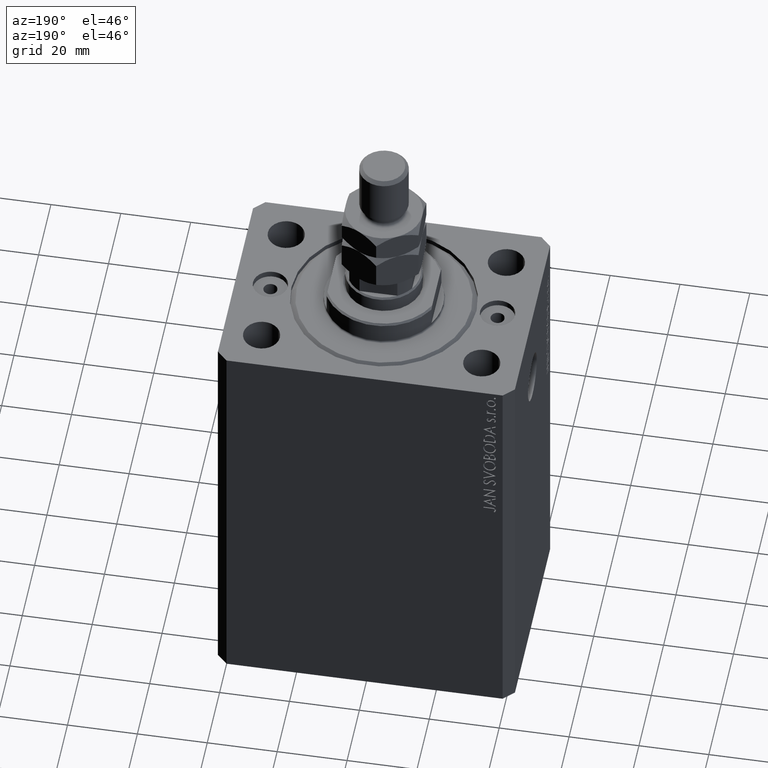
[diagram: clean part render]
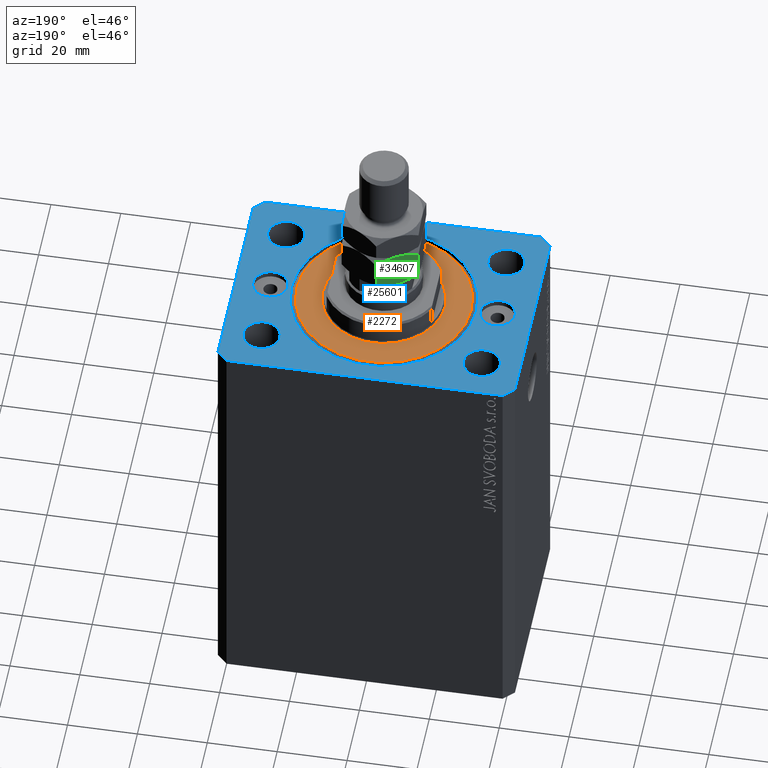
[diagram: same view with three faces highlighted in distinct colors, each labeled with its STEP entity id]
A machine part, auxiliary view with three faces highlighted in distinct colors.
Their STEP definitions:

[orange] entity #2272 — the highlighted planar face has unit normal (0, 0, -1).
#2207 = CIRCLE ( 'NONE', #11841, 24.99999999999995026 ) ;
#2272 = ADVANCED_FACE ( 'NONE', ( #6439, #12950 ), #5746, .F. ) ;
#3354 = DIRECTION ( 'NONE',  ( -0.000000000000000000, -0.000000000000000000, -1.000000000000000000 ) ) ;
#5145 = CARTESIAN_POINT ( 'NONE',  ( 24.99999999999995026, 0.000000000000000000, 0.000000000000000000 ) ) ;
#5746 = PLANE ( 'NONE',  #30170 ) ;
#6439 = FACE_BOUND ( 'NONE', #27355, .T. ) ;
#6469 = EDGE_LOOP ( 'NONE', ( #28249, #42488 ) ) ;
#7049 = CARTESIAN_POINT ( 'NONE',  ( 17.50000000000000000, 0.000000000000000000, 2.168404344971008868E-16 ) ) ;
#7295 = AXIS2_PLACEMENT_3D ( 'NONE', #28181, #3354, #31673 ) ;
#8330 = DIRECTION ( 'NONE',  ( 1.000000000000000000, 0.000000000000000000, 0.000000000000000000 ) ) ;
#11210 = EDGE_CURVE ( 'NONE', #30948, #34683, #15439, .T. ) ;
#11841 = AXIS2_PLACEMENT_3D ( 'NONE', #20949, #28133, #8330 ) ;
#12714 = CARTESIAN_POINT ( 'NONE',  ( 0.000000000000000000, 0.000000000000000000, 0.000000000000000000 ) ) ;
#12950 = FACE_OUTER_BOUND ( 'NONE', #6469, .T. ) ;
#15439 = CIRCLE ( 'NONE', #7295, 24.99999999999995026 ) ;
#16105 = ORIENTED_EDGE ( 'NONE', *, *, #31503, .T. ) ;
#17419 = AXIS2_PLACEMENT_3D ( 'NONE', #36773, #33068, #26086 ) ;
#20044 = AXIS2_PLACEMENT_3D ( 'NONE', #30682, #37418, #41367 ) ;
#20949 = CARTESIAN_POINT ( 'NONE',  ( 0.000000000000000000, 0.000000000000000000, 0.000000000000000000 ) ) ;
#21414 = ORIENTED_EDGE ( 'NONE', *, *, #24148, .T. ) ;
#23817 = CARTESIAN_POINT ( 'NONE',  ( -24.99999999999995026, 3.153465507804431248E-15, 0.000000000000000000 ) ) ;
#24148 = EDGE_CURVE ( 'NONE', #40294, #40551, #38153, .T. ) ;
#25235 = CIRCLE ( 'NONE', #20044, 17.50000000000000000 ) ;
#26086 = DIRECTION ( 'NONE',  ( 1.000000000000000000, 0.000000000000000000, 0.000000000000000000 ) ) ;
#26643 = DIRECTION ( 'NONE',  ( 1.000000000000000000, 0.000000000000000000, -0.000000000000000000 ) ) ;
#27355 = EDGE_LOOP ( 'NONE', ( #21414, #16105 ) ) ;
#28133 = DIRECTION ( 'NONE',  ( -0.000000000000000000, -0.000000000000000000, -1.000000000000000000 ) ) ;
#28181 = CARTESIAN_POINT ( 'NONE',  ( 0.000000000000000000, 0.000000000000000000, 0.000000000000000000 ) ) ;
#28249 = ORIENTED_EDGE ( 'NONE', *, *, #29815, .T. ) ;
#29815 = EDGE_CURVE ( 'NONE', #34683, #30948, #2207, .T. ) ;
#30170 = AXIS2_PLACEMENT_3D ( 'NONE', #12714, #34769, #26643 ) ;
#30682 = CARTESIAN_POINT ( 'NONE',  ( 0.000000000000000000, 0.000000000000000000, 0.000000000000000000 ) ) ;
#30948 = VERTEX_POINT ( 'NONE', #23817 ) ;
#31503 = EDGE_CURVE ( 'NONE', #40551, #40294, #25235, .T. ) ;
#31673 = DIRECTION ( 'NONE',  ( 1.000000000000000000, 0.000000000000000000, 0.000000000000000000 ) ) ;
#32864 = CARTESIAN_POINT ( 'NONE',  ( -17.50000000000000000, 2.143131898507868643E-15, 2.168404344971008868E-16 ) ) ;
#33068 = DIRECTION ( 'NONE',  ( 0.000000000000000000, 0.000000000000000000, 1.000000000000000000 ) ) ;
#34683 = VERTEX_POINT ( 'NONE', #5145 ) ;
#34769 = DIRECTION ( 'NONE',  ( 0.000000000000000000, 0.000000000000000000, 1.000000000000000000 ) ) ;
#36773 = CARTESIAN_POINT ( 'NONE',  ( 0.000000000000000000, 0.000000000000000000, 0.000000000000000000 ) ) ;
#37418 = DIRECTION ( 'NONE',  ( 0.000000000000000000, 0.000000000000000000, 1.000000000000000000 ) ) ;
#38153 = CIRCLE ( 'NONE', #17419, 17.50000000000000000 ) ;
#40294 = VERTEX_POINT ( 'NONE', #7049 ) ;
#40551 = VERTEX_POINT ( 'NONE', #32864 ) ;
#41367 = DIRECTION ( 'NONE',  ( 1.000000000000000000, 0.000000000000000000, 0.000000000000000000 ) ) ;
#42488 = ORIENTED_EDGE ( 'NONE', *, *, #11210, .T. ) ;

[blue] entity #25601 — the highlighted planar face has unit normal (0, 0, 1).
#138 = ORIENTED_EDGE ( 'NONE', *, *, #19300, .T. ) ;
#159 = AXIS2_PLACEMENT_3D ( 'NONE', #33992, #44906, #15659 ) ;
#228 = VERTEX_POINT ( 'NONE', #18578 ) ;
#590 = FACE_OUTER_BOUND ( 'NONE', #12809, .T. ) ;
#882 = DIRECTION ( 'NONE',  ( 0.000000000000000000, 0.000000000000000000, 1.000000000000000000 ) ) ;
#1337 = CARTESIAN_POINT ( 'NONE',  ( -31.49999999999999289, -20.00000000000000355, 0.000000000000000000 ) ) ;
#1448 = ORIENTED_EDGE ( 'NONE', *, *, #31786, .F. ) ;
#1647 = CARTESIAN_POINT ( 'NONE',  ( -31.50000000000000000, 19.99999999999999645, 0.000000000000000000 ) ) ;
#1738 = EDGE_CURVE ( 'NONE', #15486, #44136, #33089, .T. ) ;
#2222 = EDGE_CURVE ( 'NONE', #28083, #29719, #4184, .T. ) ;
#2321 = DIRECTION ( 'NONE',  ( 0.000000000000000000, 0.000000000000000000, 1.000000000000000000 ) ) ;
#2837 = DIRECTION ( 'NONE',  ( -0.7071067811865471286, -0.7071067811865479058, 0.000000000000000000 ) ) ;
#2993 = EDGE_CURVE ( 'NONE', #27111, #28062, #36097, .T. ) ;
#3096 = VECTOR ( 'NONE', #26003, 1000.000000000000000 ) ;
#3204 = VECTOR ( 'NONE', #40317, 1000.000000000000000 ) ;
#3394 = DIRECTION ( 'NONE',  ( 1.000000000000000000, 0.000000000000000000, 0.000000000000000000 ) ) ;
#3396 = FACE_BOUND ( 'NONE', #4279, .T. ) ;
#3686 = CARTESIAN_POINT ( 'NONE',  ( -36.75000000000000000, 19.99999999999999645, 0.000000000000000000 ) ) ;
#3854 = FACE_BOUND ( 'NONE', #45697, .T. ) ;
#4184 = CIRCLE ( 'NONE', #30132, 5.250000000000000888 ) ;
#4279 = EDGE_LOOP ( 'NONE', ( #6096, #12100 ) ) ;
#4301 = CARTESIAN_POINT ( 'NONE',  ( 31.49999999999999289, -20.00000000000000355, 0.000000000000000000 ) ) ;
#4992 = EDGE_CURVE ( 'NONE', #44136, #15486, #27243, .T. ) ;
#5160 = CARTESIAN_POINT ( 'NONE',  ( 27.50000000000000355, 6.123233995736762338E-16, 0.000000000000000000 ) ) ;
#6096 = ORIENTED_EDGE ( 'NONE', *, *, #4992, .F. ) ;
#6169 = DIRECTION ( 'NONE',  ( 1.000000000000000000, 0.000000000000000000, 0.000000000000000000 ) ) ;
#6219 = CIRCLE ( 'NONE', #18087, 5.249999999999997335 ) ;
#6264 = DIRECTION ( 'NONE',  ( 1.000000000000000000, 0.000000000000000000, 0.000000000000000000 ) ) ;
#6526 = ORIENTED_EDGE ( 'NONE', *, *, #27889, .T. ) ;
#6837 = CARTESIAN_POINT ( 'NONE',  ( 37.50000000000000000, 0.000000000000000000, 0.000000000000000000 ) ) ;
#7117 = VERTEX_POINT ( 'NONE', #30669 ) ;
#7177 = CARTESIAN_POINT ( 'NONE',  ( -36.74999999999999289, -20.00000000000000355, 0.000000000000000000 ) ) ;
#7834 = CARTESIAN_POINT ( 'NONE',  ( 42.50000000000051870, 28.49999999999995381, 0.000000000000000000 ) ) ;
#8231 = ORIENTED_EDGE ( 'NONE', *, *, #2993, .F. ) ;
#8358 = CARTESIAN_POINT ( 'NONE',  ( 31.50000000000000000, 19.99999999999999289, 0.000000000000000000 ) ) ;
#8840 = CARTESIAN_POINT ( 'NONE',  ( 39.50000000000056843, 31.49999999999999289, 0.000000000000000000 ) ) ;
#8994 = CIRCLE ( 'NONE', #32691, 4.999999999999997335 ) ;
#9285 = CARTESIAN_POINT ( 'NONE',  ( 31.50000000000000000, 19.99999999999999289, 0.000000000000000000 ) ) ;
#9419 = VERTEX_POINT ( 'NONE', #14199 ) ;
#9534 = EDGE_LOOP ( 'NONE', ( #44475, #35244 ) ) ;
#9644 = CARTESIAN_POINT ( 'NONE',  ( 31.49999999999999289, -20.00000000000000355, 0.000000000000000000 ) ) ;
#9783 = CIRCLE ( 'NONE', #14938, 5.000000000000000888 ) ;
#9819 = VECTOR ( 'NONE', #15542, 1000.000000000000000 ) ;
#10407 = VERTEX_POINT ( 'NONE', #8840 ) ;
#10736 = CARTESIAN_POINT ( 'NONE',  ( 32.50000000000000000, 0.000000000000000000, 0.000000000000000000 ) ) ;
#10880 = AXIS2_PLACEMENT_3D ( 'NONE', #9285, #2321, #16488 ) ;
#10955 = EDGE_CURVE ( 'NONE', #24323, #31981, #40062, .T. ) ;
#11032 = CIRCLE ( 'NONE', #36982, 5.250000000000000888 ) ;
#11163 = VERTEX_POINT ( 'NONE', #6837 ) ;
#11247 = CIRCLE ( 'NONE', #26796, 5.250000000000000888 ) ;
#11330 = CARTESIAN_POINT ( 'NONE',  ( 36.75000000000000000, 19.99999999999999289, 0.000000000000000000 ) ) ;
#11387 = LINE ( 'NONE', #15560, #3096 ) ;
#11754 = LINE ( 'NONE', #33354, #3204 ) ;
#12100 = ORIENTED_EDGE ( 'NONE', *, *, #1738, .F. ) ;
#12380 = VERTEX_POINT ( 'NONE', #15122 ) ;
#12431 = AXIS2_PLACEMENT_3D ( 'NONE', #21071, #43103, #14335 ) ;
#12581 = CIRCLE ( 'NONE', #21492, 4.999999999999997335 ) ;
#12809 = EDGE_LOOP ( 'NONE', ( #34073, #23861, #41742, #13486, #24296, #138, #6526, #31009 ) ) ;
#12987 = LINE ( 'NONE', #33659, #9819 ) ;
#13059 = LINE ( 'NONE', #31394, #20212 ) ;
#13079 = CARTESIAN_POINT ( 'NONE',  ( -39.50000000000000711, -31.50000000000000000, 0.000000000000000000 ) ) ;
#13480 = EDGE_CURVE ( 'NONE', #7117, #17070, #11032, .T. ) ;
#13486 = ORIENTED_EDGE ( 'NONE', *, *, #44618, .T. ) ;
#14137 = CARTESIAN_POINT ( 'NONE',  ( 42.50000000000000711, -28.50000000000000355, 0.000000000000000000 ) ) ;
#14199 = CARTESIAN_POINT ( 'NONE',  ( -27.50000000000000000, 0.000000000000000000, 0.000000000000000000 ) ) ;
#14335 = DIRECTION ( 'NONE',  ( 1.000000000000000000, 0.000000000000000000, 0.000000000000000000 ) ) ;
#14372 = LINE ( 'NONE', #14137, #36239 ) ;
#14451 = DIRECTION ( 'NONE',  ( 0.000000000000000000, -0.000000000000000000, -1.000000000000000000 ) ) ;
#14528 = FACE_BOUND ( 'NONE', #29120, .T. ) ;
#14919 = CARTESIAN_POINT ( 'NONE',  ( 0.000000000000000000, 0.000000000000000000, 0.000000000000000000 ) ) ;
#14938 = AXIS2_PLACEMENT_3D ( 'NONE', #17628, #882, #21556 ) ;
#15014 = DIRECTION ( 'NONE',  ( -0.7071067811865364705, 0.7071067811865584529, 0.000000000000000000 ) ) ;
#15017 = DIRECTION ( 'NONE',  ( 1.000000000000000000, 0.000000000000000000, 0.000000000000000000 ) ) ;
#15122 = CARTESIAN_POINT ( 'NONE',  ( -39.50000000000000711, 31.50000000000000000, 0.000000000000000000 ) ) ;
#15486 = VERTEX_POINT ( 'NONE', #19520 ) ;
#15542 = DIRECTION ( 'NONE',  ( 0.7071067811865483499, 0.7071067811865466846, 0.000000000000000000 ) ) ;
#15560 = CARTESIAN_POINT ( 'NONE',  ( 39.50000000000056843, 31.49999999999999289, 0.000000000000000000 ) ) ;
#15659 = DIRECTION ( 'NONE',  ( 1.000000000000000000, 0.000000000000000000, 0.000000000000000000 ) ) ;
#15814 = DIRECTION ( 'NONE',  ( 0.000000000000000000, 0.000000000000000000, 1.000000000000000000 ) ) ;
#16279 = DIRECTION ( 'NONE',  ( 1.000000000000000000, 0.000000000000000000, 0.000000000000000000 ) ) ;
#16488 = DIRECTION ( 'NONE',  ( 1.000000000000000000, 0.000000000000000000, 0.000000000000000000 ) ) ;
#16524 = EDGE_LOOP ( 'NONE', ( #1448, #39591 ) ) ;
#16744 = CARTESIAN_POINT ( 'NONE',  ( 26.50000000000000355, 0.000000000000000000, 0.000000000000000000 ) ) ;
#17070 = VERTEX_POINT ( 'NONE', #3686 ) ;
#17115 = VERTEX_POINT ( 'NONE', #19386 ) ;
#17169 = CARTESIAN_POINT ( 'NONE',  ( 42.50000000000000711, -28.50000000000000355, 0.000000000000000000 ) ) ;
#17562 = FACE_BOUND ( 'NONE', #9534, .T. ) ;
#17628 = CARTESIAN_POINT ( 'NONE',  ( -32.50000000000000000, 0.000000000000000000, 0.000000000000000000 ) ) ;
#17894 = EDGE_CURVE ( 'NONE', #17070, #7117, #29024, .T. ) ;
#17916 = EDGE_CURVE ( 'NONE', #44294, #9419, #9783, .T. ) ;
#17975 = VERTEX_POINT ( 'NONE', #26405 ) ;
#18019 = FACE_BOUND ( 'NONE', #16524, .T. ) ;
#18087 = AXIS2_PLACEMENT_3D ( 'NONE', #8358, #36677, #29697 ) ;
#18446 = ORIENTED_EDGE ( 'NONE', *, *, #36742, .F. ) ;
#18532 = DIRECTION ( 'NONE',  ( 8.886653596232072440E-15, 1.000000000000000000, 0.000000000000000000 ) ) ;
#18578 = CARTESIAN_POINT ( 'NONE',  ( 26.24999999999999645, -20.00000000000000355, 0.000000000000000000 ) ) ;
#19007 = ORIENTED_EDGE ( 'NONE', *, *, #13480, .F. ) ;
#19128 = VECTOR ( 'NONE', #28473, 1000.000000000000000 ) ;
#19300 = EDGE_CURVE ( 'NONE', #31981, #37477, #12987, .T. ) ;
#19386 = CARTESIAN_POINT ( 'NONE',  ( -42.50000000000000000, -28.50000000000000000, 0.000000000000000000 ) ) ;
#19520 = CARTESIAN_POINT ( 'NONE',  ( -26.50000000000000355, 3.245314017740485765E-15, 0.000000000000000000 ) ) ;
#20212 = VECTOR ( 'NONE', #2837, 1000.000000000000000 ) ;
#21071 = CARTESIAN_POINT ( 'NONE',  ( 0.000000000000000000, 0.000000000000000000, 0.000000000000000000 ) ) ;
#21264 = FACE_BOUND ( 'NONE', #33167, .T. ) ;
#21492 = AXIS2_PLACEMENT_3D ( 'NONE', #25962, #24425, #24658 ) ;
#21556 = DIRECTION ( 'NONE',  ( 1.000000000000000000, 0.000000000000000000, 0.000000000000000000 ) ) ;
#21941 = DIRECTION ( 'NONE',  ( 0.000000000000000000, 0.000000000000000000, 1.000000000000000000 ) ) ;
#22694 = DIRECTION ( 'NONE',  ( 1.000000000000000000, 0.000000000000000000, 0.000000000000000000 ) ) ;
#23139 = CIRCLE ( 'NONE', #159, 5.000000000000000888 ) ;
#23275 = CARTESIAN_POINT ( 'NONE',  ( -26.24999999999999289, -20.00000000000000355, 0.000000000000000000 ) ) ;
#23861 = ORIENTED_EDGE ( 'NONE', *, *, #42101, .T. ) ;
#23892 = CARTESIAN_POINT ( 'NONE',  ( -31.50000000000000000, 19.99999999999999645, 0.000000000000000000 ) ) ;
#24296 = ORIENTED_EDGE ( 'NONE', *, *, #10955, .T. ) ;
#24323 = VERTEX_POINT ( 'NONE', #13079 ) ;
#24425 = DIRECTION ( 'NONE',  ( 0.000000000000000000, -0.000000000000000000, -1.000000000000000000 ) ) ;
#24575 = VECTOR ( 'NONE', #15014, 1000.000000000000114 ) ;
#24658 = DIRECTION ( 'NONE',  ( 1.000000000000000000, 0.000000000000000000, 0.000000000000000000 ) ) ;
#24819 = VERTEX_POINT ( 'NONE', #43517 ) ;
#25193 = PLANE ( 'NONE',  #28800 ) ;
#25298 = LINE ( 'NONE', #39470, #40149 ) ;
#25601 = ADVANCED_FACE ( 'NONE', ( #590, #14528, #3854, #18019, #39603, #3396, #21264, #17562 ), #25193, .T. ) ;
#25850 = VERTEX_POINT ( 'NONE', #5160 ) ;
#25962 = CARTESIAN_POINT ( 'NONE',  ( 32.50000000000000000, 0.000000000000000000, 0.000000000000000000 ) ) ;
#26003 = DIRECTION ( 'NONE',  ( -1.000000000000000000, 8.783410004945795812E-17, 0.000000000000000000 ) ) ;
#26405 = CARTESIAN_POINT ( 'NONE',  ( 36.74999999999999289, -20.00000000000000355, 0.000000000000000000 ) ) ;
#26697 = CIRCLE ( 'NONE', #34864, 5.249999999999997335 ) ;
#26796 = AXIS2_PLACEMENT_3D ( 'NONE', #35710, #29404, #15017 ) ;
#27111 = VERTEX_POINT ( 'NONE', #45138 ) ;
#27157 = AXIS2_PLACEMENT_3D ( 'NONE', #14919, #31727, #43472 ) ;
#27243 = CIRCLE ( 'NONE', #12431, 26.50000000000000355 ) ;
#27889 = EDGE_CURVE ( 'NONE', #37477, #24819, #14372, .T. ) ;
#28062 = VERTEX_POINT ( 'NONE', #11330 ) ;
#28083 = VERTEX_POINT ( 'NONE', #7177 ) ;
#28473 = DIRECTION ( 'NONE',  ( 1.000000000000000000, 0.000000000000000000, 0.000000000000000000 ) ) ;
#28599 = DIRECTION ( 'NONE',  ( 1.000000000000000000, 0.000000000000000000, 0.000000000000000000 ) ) ;
#28800 = AXIS2_PLACEMENT_3D ( 'NONE', #31719, #21941, #45884 ) ;
#29024 = CIRCLE ( 'NONE', #34989, 5.250000000000000888 ) ;
#29120 = EDGE_LOOP ( 'NONE', ( #19007, #41929 ) ) ;
#29208 = DIRECTION ( 'NONE',  ( 0.000000000000000000, 0.000000000000000000, 1.000000000000000000 ) ) ;
#29404 = DIRECTION ( 'NONE',  ( 0.000000000000000000, 0.000000000000000000, 1.000000000000000000 ) ) ;
#29625 = ORIENTED_EDGE ( 'NONE', *, *, #17916, .F. ) ;
#29697 = DIRECTION ( 'NONE',  ( 1.000000000000000000, 0.000000000000000000, 0.000000000000000000 ) ) ;
#29719 = VERTEX_POINT ( 'NONE', #23275 ) ;
#29756 = EDGE_CURVE ( 'NONE', #11163, #25850, #12581, .T. ) ;
#30132 = AXIS2_PLACEMENT_3D ( 'NONE', #1337, #29208, #22694 ) ;
#30230 = VERTEX_POINT ( 'NONE', #31018 ) ;
#30445 = ORIENTED_EDGE ( 'NONE', *, *, #35561, .F. ) ;
#30669 = CARTESIAN_POINT ( 'NONE',  ( -26.25000000000000000, 19.99999999999999645, 0.000000000000000000 ) ) ;
#31009 = ORIENTED_EDGE ( 'NONE', *, *, #38850, .T. ) ;
#31018 = CARTESIAN_POINT ( 'NONE',  ( -42.50000000000000000, 28.50000000000000000, 0.000000000000000000 ) ) ;
#31394 = CARTESIAN_POINT ( 'NONE',  ( -39.50000000000000711, 31.50000000000000000, 0.000000000000000000 ) ) ;
#31719 = CARTESIAN_POINT ( 'NONE',  ( 0.000000000000000000, 0.000000000000000000, 0.000000000000000000 ) ) ;
#31727 = DIRECTION ( 'NONE',  ( 0.000000000000000000, 0.000000000000000000, 1.000000000000000000 ) ) ;
#31786 = EDGE_CURVE ( 'NONE', #17975, #228, #26697, .T. ) ;
#31981 = VERTEX_POINT ( 'NONE', #44439 ) ;
#32638 = CARTESIAN_POINT ( 'NONE',  ( -39.50000000000000711, -31.50000000000000000, 0.000000000000000000 ) ) ;
#32671 = LINE ( 'NONE', #7834, #24575 ) ;
#32691 = AXIS2_PLACEMENT_3D ( 'NONE', #10736, #14451, #28599 ) ;
#33089 = CIRCLE ( 'NONE', #27157, 26.50000000000000355 ) ;
#33167 = EDGE_LOOP ( 'NONE', ( #18446, #29625 ) ) ;
#33354 = CARTESIAN_POINT ( 'NONE',  ( -42.50000000000000000, -28.50000000000000000, 0.000000000000000000 ) ) ;
#33559 = EDGE_CURVE ( 'NONE', #228, #17975, #37131, .T. ) ;
#33659 = CARTESIAN_POINT ( 'NONE',  ( 39.50000000000000711, -31.50000000000000000, 0.000000000000000000 ) ) ;
#33816 = EDGE_CURVE ( 'NONE', #25850, #11163, #8994, .T. ) ;
#33992 = CARTESIAN_POINT ( 'NONE',  ( -32.50000000000000000, 0.000000000000000000, 0.000000000000000000 ) ) ;
#34073 = ORIENTED_EDGE ( 'NONE', *, *, #41162, .T. ) ;
#34124 = DIRECTION ( 'NONE',  ( 0.000000000000000000, 0.000000000000000000, 1.000000000000000000 ) ) ;
#34864 = AXIS2_PLACEMENT_3D ( 'NONE', #4301, #39368, #3394 ) ;
#34989 = AXIS2_PLACEMENT_3D ( 'NONE', #23892, #34124, #6264 ) ;
#34990 = EDGE_CURVE ( 'NONE', #30230, #17115, #25298, .T. ) ;
#35244 = ORIENTED_EDGE ( 'NONE', *, *, #33816, .T. ) ;
#35561 = EDGE_CURVE ( 'NONE', #29719, #28083, #11247, .T. ) ;
#35710 = CARTESIAN_POINT ( 'NONE',  ( -31.49999999999999289, -20.00000000000000355, 0.000000000000000000 ) ) ;
#36097 = CIRCLE ( 'NONE', #10880, 5.249999999999997335 ) ;
#36142 = ORIENTED_EDGE ( 'NONE', *, *, #2222, .F. ) ;
#36239 = VECTOR ( 'NONE', #18532, 1000.000000000000000 ) ;
#36677 = DIRECTION ( 'NONE',  ( 0.000000000000000000, 0.000000000000000000, 1.000000000000000000 ) ) ;
#36742 = EDGE_CURVE ( 'NONE', #9419, #44294, #23139, .T. ) ;
#36879 = CARTESIAN_POINT ( 'NONE',  ( -37.50000000000000000, 6.123233995736768255E-16, 0.000000000000000000 ) ) ;
#36982 = AXIS2_PLACEMENT_3D ( 'NONE', #1647, #15814, #16279 ) ;
#37131 = CIRCLE ( 'NONE', #40817, 5.249999999999997335 ) ;
#37477 = VERTEX_POINT ( 'NONE', #17169 ) ;
#37976 = DIRECTION ( 'NONE',  ( 0.000000000000000000, 0.000000000000000000, 1.000000000000000000 ) ) ;
#38850 = EDGE_CURVE ( 'NONE', #24819, #10407, #32671, .T. ) ;
#39368 = DIRECTION ( 'NONE',  ( 0.000000000000000000, 0.000000000000000000, 1.000000000000000000 ) ) ;
#39470 = CARTESIAN_POINT ( 'NONE',  ( -42.50000000000000000, 28.50000000000000000, 0.000000000000000000 ) ) ;
#39591 = ORIENTED_EDGE ( 'NONE', *, *, #33559, .F. ) ;
#39603 = FACE_BOUND ( 'NONE', #40856, .T. ) ;
#40062 = LINE ( 'NONE', #32638, #19128 ) ;
#40149 = VECTOR ( 'NONE', #43398, 1000.000000000000000 ) ;
#40317 = DIRECTION ( 'NONE',  ( 0.7071067811865471286, -0.7071067811865479058, 0.000000000000000000 ) ) ;
#40817 = AXIS2_PLACEMENT_3D ( 'NONE', #9644, #37976, #6169 ) ;
#40856 = EDGE_LOOP ( 'NONE', ( #30445, #36142 ) ) ;
#41162 = EDGE_CURVE ( 'NONE', #10407, #12380, #11387, .T. ) ;
#41742 = ORIENTED_EDGE ( 'NONE', *, *, #34990, .T. ) ;
#41929 = ORIENTED_EDGE ( 'NONE', *, *, #17894, .F. ) ;
#42101 = EDGE_CURVE ( 'NONE', #12380, #30230, #13059, .T. ) ;
#43103 = DIRECTION ( 'NONE',  ( 0.000000000000000000, 0.000000000000000000, 1.000000000000000000 ) ) ;
#43398 = DIRECTION ( 'NONE',  ( 0.000000000000000000, -1.000000000000000000, 0.000000000000000000 ) ) ;
#43472 = DIRECTION ( 'NONE',  ( 1.000000000000000000, 0.000000000000000000, 0.000000000000000000 ) ) ;
#43517 = CARTESIAN_POINT ( 'NONE',  ( 42.50000000000051870, 28.49999999999995381, 0.000000000000000000 ) ) ;
#43676 = ORIENTED_EDGE ( 'NONE', *, *, #45878, .F. ) ;
#44136 = VERTEX_POINT ( 'NONE', #16744 ) ;
#44294 = VERTEX_POINT ( 'NONE', #36879 ) ;
#44439 = CARTESIAN_POINT ( 'NONE',  ( 39.50000000000000711, -31.50000000000000000, 0.000000000000000000 ) ) ;
#44475 = ORIENTED_EDGE ( 'NONE', *, *, #29756, .T. ) ;
#44618 = EDGE_CURVE ( 'NONE', #17115, #24323, #11754, .T. ) ;
#44906 = DIRECTION ( 'NONE',  ( 0.000000000000000000, 0.000000000000000000, 1.000000000000000000 ) ) ;
#45138 = CARTESIAN_POINT ( 'NONE',  ( 26.25000000000000355, 19.99999999999999289, 0.000000000000000000 ) ) ;
#45697 = EDGE_LOOP ( 'NONE', ( #43676, #8231 ) ) ;
#45878 = EDGE_CURVE ( 'NONE', #28062, #27111, #6219, .T. ) ;
#45884 = DIRECTION ( 'NONE',  ( 1.000000000000000000, 0.000000000000000000, -0.000000000000000000 ) ) ;

[green] entity #34607 — the highlighted planar face has unit normal (0.5, -0.866, 0).
#407 = VERTEX_POINT ( 'NONE', #6195 ) ;
#607 = CARTESIAN_POINT ( 'NONE',  ( 0.000000000000000000, 12.70170592217176342, 11.00000000000000000 ) ) ;
#774 = B_SPLINE_CURVE_WITH_KNOTS ( 'NONE', 3,
 ( #44579, #12780, #26941, #41102, #41339, #27621, #20213, #2561 ),
 .UNSPECIFIED., .F., .F.,
 ( 4, 2, 2, 4 ),
 ( 2.544311317609508508E-07, 0.003291871675740026034, 0.004937680298044156910, 0.006583488920348289086 ),
 .UNSPECIFIED. ) ;
#1177 = VERTEX_POINT ( 'NONE', #42737 ) ;
#1249 = LINE ( 'NONE', #21471, #11405 ) ;
#2514 = CARTESIAN_POINT ( 'NONE',  ( -5.499999999999992895, 9.526279441628830114, 0.000000000000000000 ) ) ;
#2561 = CARTESIAN_POINT ( 'NONE',  ( -5.499999999999990230, 9.526279441628824785, 11.00000000000000000 ) ) ;
#2740 = CARTESIAN_POINT ( 'NONE',  ( -3.602926119288147433, 10.62155555733042434, 0.1689086083647601266 ) ) ;
#3358 = CARTESIAN_POINT ( 'NONE',  ( -7.420105971005176215, 8.417705742396382362, 0.2081220748670755127 ) ) ;
#3429 = ORIENTED_EDGE ( 'NONE', *, *, #11285, .F. ) ;
#3814 = CARTESIAN_POINT ( 'NONE',  ( -11.00000000000000000, 6.350852961085892368, 1.701705922171765195 ) ) ;
#3964 = EDGE_CURVE ( 'NONE', #407, #31945, #774, .T. ) ;
#4141 = ORIENTED_EDGE ( 'NONE', *, *, #29547, .F. ) ;
#6195 = CARTESIAN_POINT ( 'NONE',  ( -4.327962126576701651E-16, 12.70170592217176342, 9.298294077828241910 ) ) ;
#7124 = LINE ( 'NONE', #607, #9897 ) ;
#7289 = CARTESIAN_POINT ( 'NONE',  ( -10.13851939750335696, 6.848229018838968507, 9.795670135581390880 ) ) ;
#7943 = CARTESIAN_POINT ( 'NONE',  ( 9.006588997586899406E-16, 12.70170592217176342, 1.701705922171758312 ) ) ;
#9477 = CARTESIAN_POINT ( 'NONE',  ( -4.543329525579419048, 10.07861339756131791, 1.768604793866978714E-15 ) ) ;
#9897 = VECTOR ( 'NONE', #11052, 1000.000000000000000 ) ;
#10282 = FACE_OUTER_BOUND ( 'NONE', #32992, .T. ) ;
#10316 = CARTESIAN_POINT ( 'NONE',  ( -10.13752086928278118, 6.848805519375908979, 1.203753363881748362 ) ) ;
#10772 = CARTESIAN_POINT ( 'NONE',  ( -11.00000000000000000, 6.350852961085890591, 9.298294077828234805 ) ) ;
#10983 = CARTESIAN_POINT ( 'NONE',  ( -11.00000000000000000, 6.350852961085892368, 1.701705922171765195 ) ) ;
#11052 = DIRECTION ( 'NONE',  ( -0.000000000000000000, -0.000000000000000000, -1.000000000000000000 ) ) ;
#11285 = EDGE_CURVE ( 'NONE', #31945, #1177, #42688, .T. ) ;
#11405 = VECTOR ( 'NONE', #39576, 1000.000000000000000 ) ;
#11447 = CARTESIAN_POINT ( 'NONE',  ( -6.456670474420569406, 8.973945485696344093, 11.00000000000000000 ) ) ;
#12780 = CARTESIAN_POINT ( 'NONE',  ( -0.8624791307172121613, 12.20375336388174681, 9.796246636118258522 ) ) ;
#12899 = CARTESIAN_POINT ( 'NONE',  ( -5.499999999999992895, 9.526279441628830114, 0.000000000000000000 ) ) ;
#13980 = VERTEX_POINT ( 'NONE', #10983 ) ;
#14259 = CARTESIAN_POINT ( 'NONE',  ( -7.397073880711845462, 8.431003325927239445, 10.83109139163524404 ) ) ;
#14489 = CARTESIAN_POINT ( 'NONE',  ( -6.470625887979888802, 8.965888323921223702, 0.04365929743512723255 ) ) ;
#15628 = EDGE_CURVE ( 'NONE', #407, #39573, #7124, .T. ) ;
#17263 = PLANE ( 'NONE',  #41621 ) ;
#17524 = CARTESIAN_POINT ( 'NONE',  ( -5.499999999999992895, 9.526279441628830114, 0.000000000000000000 ) ) ;
#17750 = CARTESIAN_POINT ( 'NONE',  ( -9.255521992360788985, 7.358027808391769398, 0.7806233875467772920 ) ) ;
#17977 = CARTESIAN_POINT ( 'NONE',  ( -5.499999999999990230, 9.526279441628824785, 11.00000000000000000 ) ) ;
#20099 = ORIENTED_EDGE ( 'NONE', *, *, #33290, .F. ) ;
#20213 = CARTESIAN_POINT ( 'NONE',  ( -5.018290712253354435, 9.804394428580495813, 11.00000000000000178 ) ) ;
#20732 = CARTESIAN_POINT ( 'NONE',  ( 0.000000000000000000, 12.70170592217176342, 11.00000000000000000 ) ) ;
#21471 = CARTESIAN_POINT ( 'NONE',  ( -11.00000000000000000, 6.350852961085890591, 11.00000000000000000 ) ) ;
#23459 = B_SPLINE_CURVE_WITH_KNOTS ( 'NONE', 3,
 ( #3814, #10316, #17750, #38656, #3358, #14489, #35847, #17524 ),
 .UNSPECIFIED., .F., .F.,
 ( 4, 2, 2, 4 ),
 ( 2.544311317612473652E-07, 0.003291871675740032539, 0.004937680298044168185, 0.006583488920348303831 ),
 .UNSPECIFIED. ) ;
#23632 = CARTESIAN_POINT ( 'NONE',  ( -1.748214531935804672, 11.69237379155741330, 0.7776848045220272621 ) ) ;
#24440 = DIRECTION ( 'NONE',  ( 0.8660254037844389297, 0.4999999999999992784, 0.000000000000000000 ) ) ;
#26283 = ORIENTED_EDGE ( 'NONE', *, *, #15628, .T. ) ;
#26941 = CARTESIAN_POINT ( 'NONE',  ( -1.744478007639206130, 11.69453107486589083, 10.21937661245322637 ) ) ;
#27621 = CARTESIAN_POINT ( 'NONE',  ( -4.529374112020101428, 10.08667055933643830, 10.95634070256487469 ) ) ;
#28317 = ORIENTED_EDGE ( 'NONE', *, *, #3964, .F. ) ;
#28756 = B_SPLINE_CURVE_WITH_KNOTS ( 'NONE', 3,
 ( #2514, #9477, #2740, #23632, #44534, #37800 ),
 .UNSPECIFIED., .F., .F.,
 ( 4, 2, 4 ),
 ( 0.006583488920348303831, 0.009852050593448711396, 0.01312061226654911809 ),
 .UNSPECIFIED. ) ;
#29547 = EDGE_CURVE ( 'NONE', #13980, #42925, #23459, .T. ) ;
#30746 = CARTESIAN_POINT ( 'NONE',  ( -5.499999999999990230, 9.526279441628824785, 11.00000000000000000 ) ) ;
#31415 = DIRECTION ( 'NONE',  ( 0.4999999999999993339, -0.8660254037844390407, 0.000000000000000000 ) ) ;
#31945 = VERTEX_POINT ( 'NONE', #30746 ) ;
#32992 = EDGE_LOOP ( 'NONE', ( #4141, #36424, #3429, #28317, #26283, #20099 ) ) ;
#33290 = EDGE_CURVE ( 'NONE', #42925, #39573, #28756, .T. ) ;
#34607 = ADVANCED_FACE ( 'NONE', ( #10282 ), #17263, .F. ) ;
#35843 = CARTESIAN_POINT ( 'NONE',  ( -9.251785468064188223, 7.360185091700242488, 10.22231519547797340 ) ) ;
#35847 = CARTESIAN_POINT ( 'NONE',  ( -5.981709287746635795, 9.248164454677164414, 1.734723475976807094E-15 ) ) ;
#36424 = ORIENTED_EDGE ( 'NONE', *, *, #44974, .F. ) ;
#37800 = CARTESIAN_POINT ( 'NONE',  ( 9.006588997586899406E-16, 12.70170592217176342, 1.701705922171758312 ) ) ;
#38656 = CARTESIAN_POINT ( 'NONE',  ( -7.884967580346608607, 8.149317767107183030, 0.3282192120904074417 ) ) ;
#39573 = VERTEX_POINT ( 'NONE', #7943 ) ;
#39576 = DIRECTION ( 'NONE',  ( -0.000000000000000000, -0.000000000000000000, -1.000000000000000000 ) ) ;
#41102 = CARTESIAN_POINT ( 'NONE',  ( -3.115032419653383400, 10.90324111615047542, 10.67178078790959539 ) ) ;
#41339 = CARTESIAN_POINT ( 'NONE',  ( -3.579894028994817123, 10.63485314086127786, 10.79187792513292798 ) ) ;
#41621 = AXIS2_PLACEMENT_3D ( 'NONE', #20732, #31415, #24440 ) ;
#42688 = B_SPLINE_CURVE_WITH_KNOTS ( 'NONE', 3,
 ( #17977, #11447, #14259, #35843, #7289, #10772 ),
 .UNSPECIFIED., .F., .F.,
 ( 4, 2, 4 ),
 ( 0.006583488920348289086, 0.009852050593448704457, 0.01312061226654911983 ),
 .UNSPECIFIED. ) ;
#42737 = CARTESIAN_POINT ( 'NONE',  ( -11.00000000000000000, 6.350852961085890591, 9.298294077828234805 ) ) ;
#42925 = VERTEX_POINT ( 'NONE', #12899 ) ;
#44534 = CARTESIAN_POINT ( 'NONE',  ( -0.8614806024966418230, 12.20432986441868728, 1.204329864418604235 ) ) ;
#44579 = CARTESIAN_POINT ( 'NONE',  ( -4.327962126576701651E-16, 12.70170592217176342, 9.298294077828241910 ) ) ;
#44974 = EDGE_CURVE ( 'NONE', #1177, #13980, #1249, .T. ) ;